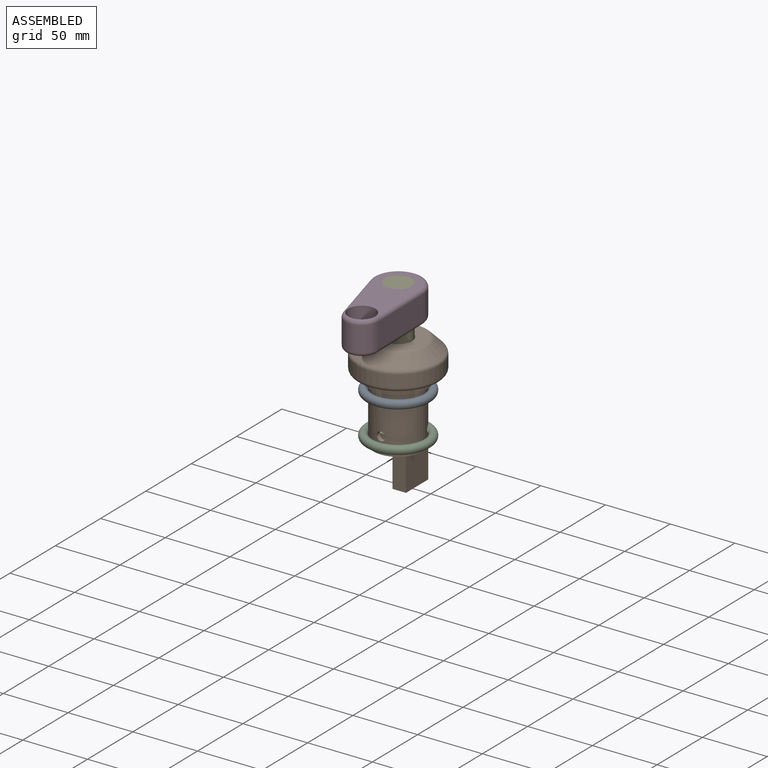
[diagram: assembled view]
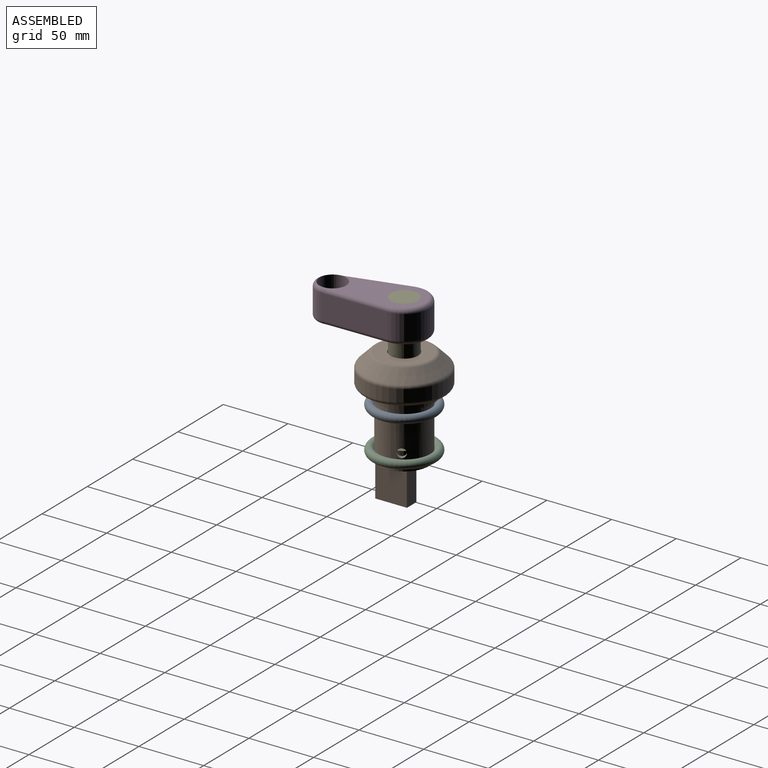
[diagram: assembled view, second angle]
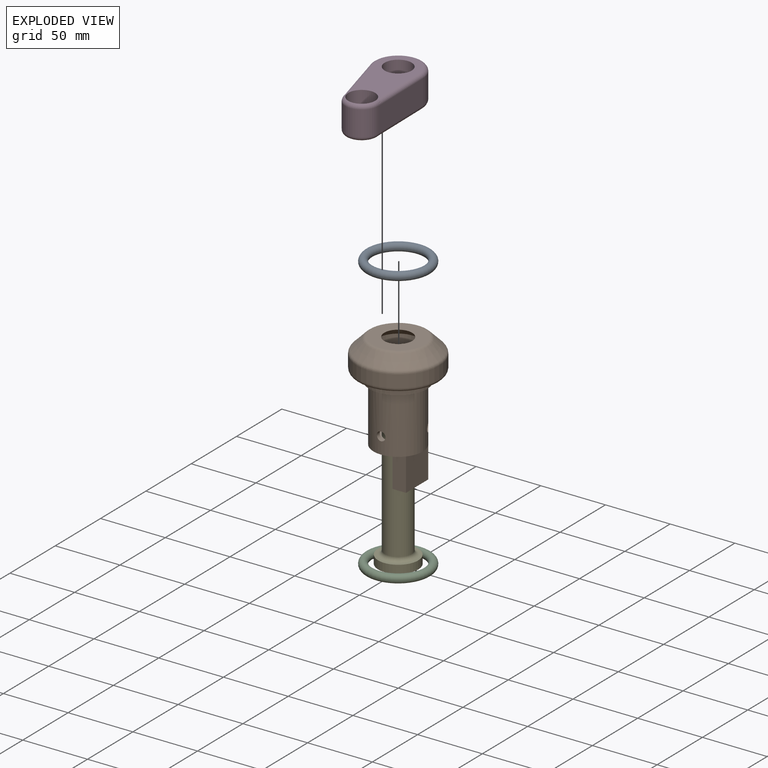
[diagram: exploded view]
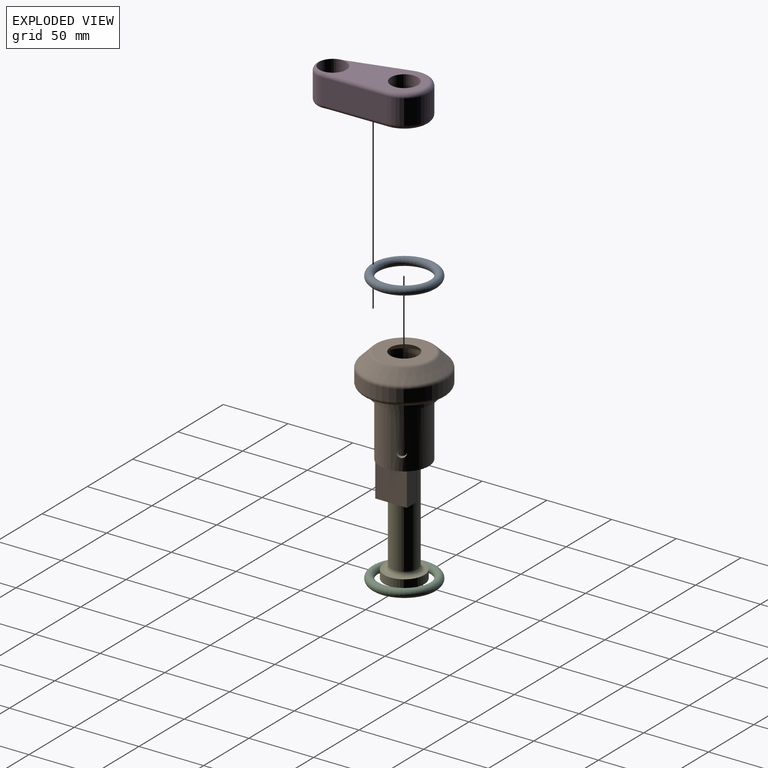
[diagram: exploded view, second angle]
ASSEMBLY  parts=5 mates=4
PART A: 1 faces, bbox 55x55x6.4 mm
  f0: torus R=22.23mm, axis (0,0,1), area 2785.8mm2
PART B: 24 faces, bbox 68.7x68.7x100.3 mm
  f0: plane 38.1x33.64mm, normal (0,0,-1), area 810.7mm2, adj f2,f19,f21,f22
  f1: plane 24.49x4.46mm, normal (0,0,-1), area 74.7mm2, adj f2,f20
  f2: cylinder r=19.05mm len=44.45mm, axis (0,0,-1), area 5212.8mm2, adj f0,f1,f5,f12,f13,f14
  f3: cylinder r=15.88mm len=63.5mm, axis (0,0,-1), area 6226mm2, adj f4,f11,f12,f13,f14
  f4: plane 31.75x31.75mm, normal (0,0,1), area 791.7mm2, adj f3
  f5: plane 44.45x44.45mm, normal (0,0,-1), area 411.7mm2, adj f2,f6
  f6: cylinder r=22.23mm len=44.45mm, axis (0,0,-1), area 443.4mm2, adj f5,f15
  f7: plane 57.15x57.15mm, normal (0,0,-1), area 538.4mm2, adj f15,f16
  f8: cylinder r=31.75mm len=63.5mm, axis (0,0,-1), area 1891.2mm2, adj f16,f17
  f9: cone r=31.75mm half-angle=45deg, axis (0,0,-1), area 1967mm2, adj f17,f18
  f10: plane 40.55x40.55mm, normal (0,0,1), area 925.3mm2, adj f11,f18
  f11: cone r=15.88mm half-angle=45deg, axis (0,0,-1), area 601.9mm2, adj f3,f10
  f12: cylinder r=3.38mm len=6.76mm, axis (0,1,0), area 68mm2, adj f2,f3
  f13: cylinder r=3.38mm len=7.62mm, axis (0.87,-0.5,0), area 68mm2, adj f2,f3
  f14: cylinder r=3.38mm len=7.62mm, axis (-0.87,-0.5,0), area 68mm2, adj f2,f3
  f15: torus R=25.4mm, axis (0,0,-1), area 732.6mm2, adj f6,f7
  f16: torus R=28.57mm, axis (0,0,-1), area 958.8mm2, adj f7,f8
  f17: torus R=28.57mm, axis (0,0,1), area 492.5mm2, adj f8,f9
  f18: torus R=20.27mm, axis (0,0,1), area 336.2mm2, adj f9,f10
  f19: plane 25.4x10.4mm, normal (0,1,0), area 264.1mm2, adj f0,f20,f22,f23
  f20: plane 25.4x24.49mm, normal (1,0,0), area 622.1mm2, adj f1,f19,f21,f23
  f21: plane 25.4x10.4mm, normal (0,-1,0), area 264.1mm2, adj f0,f20,f22,f23
  f22: plane 25.4x24.49mm, normal (-1,0,0), area 622.1mm2, adj f0,f19,f21,f23
  f23: plane 24.49x10.4mm, normal (0,0,-1), area 254.7mm2, adj f19,f20,f21,f22
PART C: same geometry as A
PART D: 20 faces, bbox 85.2x41.2x25.6 mm
  f0: cylinder r=19.05mm len=38.1mm, axis (0,0,1), area 1231.1mm2, adj f1,f4,f8,f16
  f1: plane 50.01x19.3mm, normal (0.12,-0.99,0), area 960.7mm2, adj f0,f2,f9,f11,f14,f15
  f2: cylinder r=12.7mm len=25.2mm, axis (0,0,1), area 708.4mm2, adj f1,f4,f13,f17
  f3: cylinder r=10.4mm len=25.4mm, axis (0,0,1), area 1659.5mm2, adj f5,f6
  f4: plane 50.01x19.3mm, normal (0.12,0.99,0), area 960.7mm2, adj f0,f2,f10,f12,f18,f19
  f5: plane 63.73x31.75mm, normal (0,0,-1), area 1189.5mm2, adj f3,f7,f14,f16,f18
  f6: plane 63.73x31.75mm, normal (0,0,1), area 1189.5mm2, adj f3,f7,f8,f9,f10
  f7: cylinder r=10.4mm len=25.4mm, axis (0,0,1), area 1659.5mm2, adj f5,f6,f11,f12,f13,f15,f17,f19
  f8: torus R=15.88mm, axis (0,0,1), area 302.8mm2, adj f0,f6,f9,f10
  f9: cylinder r=3.17mm len=46.27mm, axis (0.99,0.12,0), area 230.6mm2, adj f1,f6,f8,f11
  f10: cylinder r=3.17mm len=46.27mm, axis (-0.99,0.12,0), area 230.6mm2, adj f4,f6,f8,f12
  f11: bspline ~5.71x3.26mm, area 18.3mm2, adj f1,f7,f9,f13
  f12: bspline ~5.71x3.26mm, area 18.3mm2, adj f4,f7,f10,f13
  f13: torus R=9.53mm, axis (0,0,1), area 141mm2, adj f2,f7,f11,f12
  f14: cylinder r=3.17mm len=46.27mm, axis (-0.99,-0.12,0), area 230.6mm2, adj f1,f5,f15,f16
  f15: bspline ~5.71x3.26mm, area 18.3mm2, adj f1,f7,f14,f17
  f16: torus R=15.88mm, axis (0,0,1), area 302.8mm2, adj f0,f5,f14,f18
  f17: torus R=9.53mm, axis (0,0,-1), area 141mm2, adj f2,f7,f15,f19
  f18: cylinder r=3.17mm len=46.27mm, axis (0.99,-0.12,0), area 230.6mm2, adj f4,f5,f16,f19
  f19: bspline ~5.71x3.26mm, area 18.3mm2, adj f4,f7,f17,f18
PART E: 6 faces, bbox 34.3x34.3x106.7 mm
  f0: plane 30.96x30.96mm, normal (0,0,-1), area 752.6mm2, adj f1
  f1: cylinder r=15.48mm len=30.96mm, axis (0,0,1), area 617.5mm2, adj f0,f2
  f2: plane 30.96x30.96mm, normal (0,0,1), area 173.9mm2, adj f1,f5
  f3: cylinder r=10.4mm len=97.16mm, axis (0,0,1), area 6347.5mm2, adj f4,f5
  f4: plane 20.8x20.8mm, normal (0,0,1), area 339.7mm2, adj f3
  f5: torus R=13.57mm, axis (0,0,1), area 362mm2, adj f2,f3
PLACE A t=(0,0,38.1)mm
PLACE B at identity fixed
PLACE C t=(0,0,6.35)mm
PLACE D rot(axis=(0,0,-1),82deg) t=(0,0,0)mm
PLACE E rot(axis=(0,0,-1),172deg) t=(0,0,0)mm
MATE fastened E.f1 <-> D.f0  axis (0,0,1) through (0,0,113.03)mm
MATE fastened A.f0 <-> B.f2  axis (0,0,1) through (0,0,38.1)mm
MATE cylindrical E.f1 <-> B.f2  axis (0,0,-1) through (0,0,6.35)mm
MATE fastened C.f0 <-> B.f2  axis (0,0,1) through (0,0,6.35)mm
